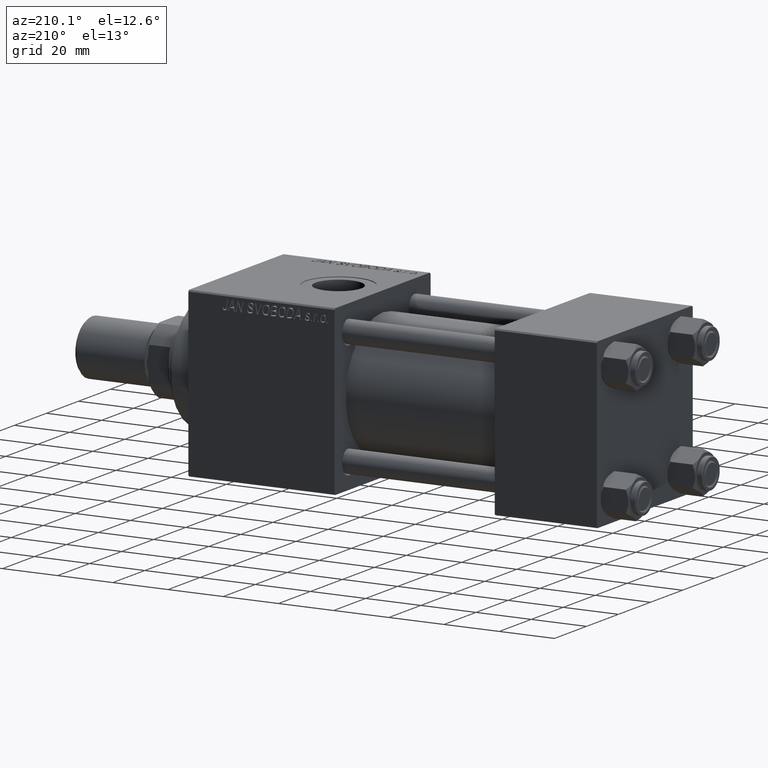
[diagram: clean part render]
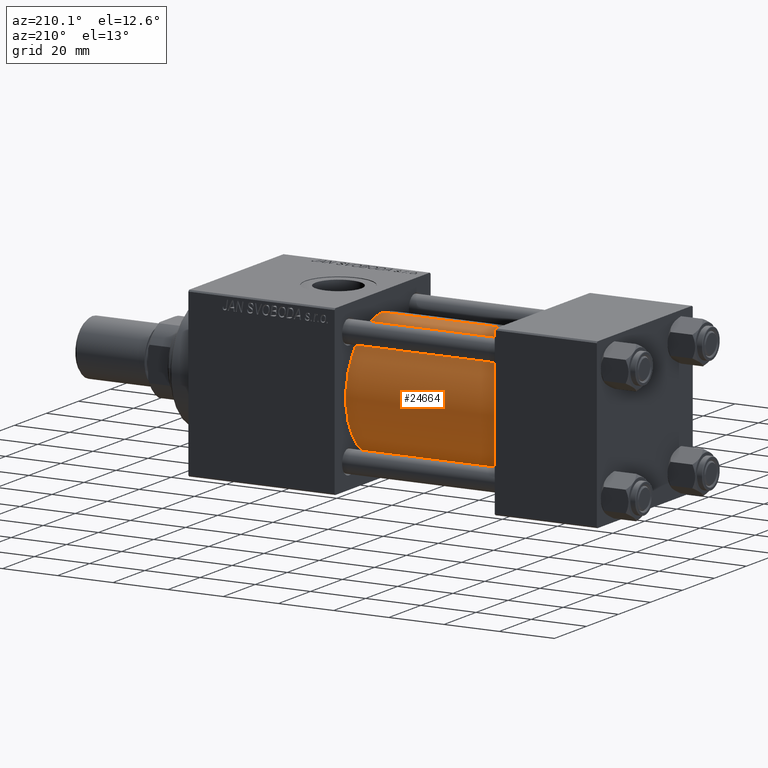
[diagram: same view with one face highlighted and labeled with its STEP entity id]
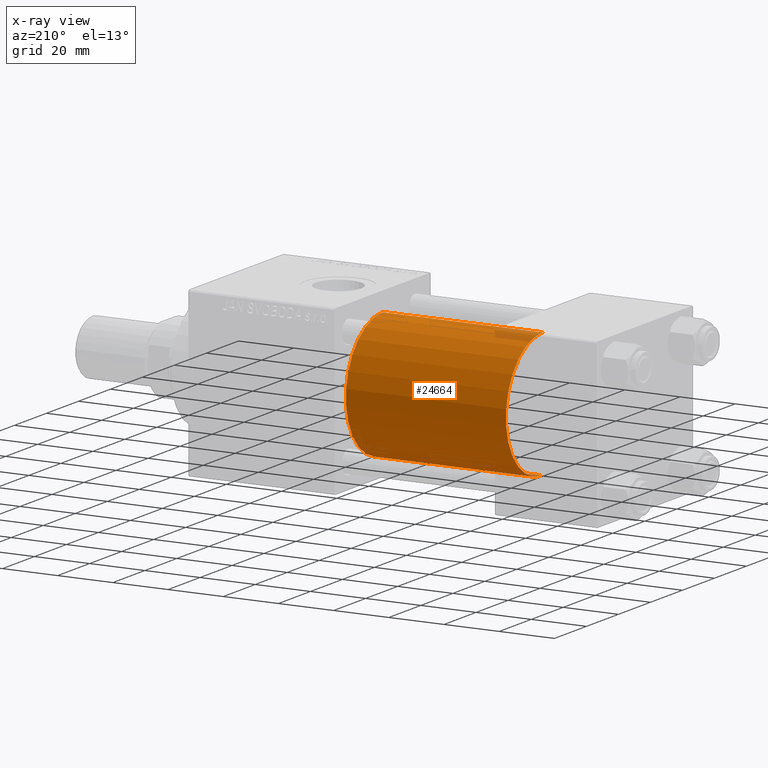
[diagram: x-ray of the same camera — body ghosted, the highlighted face saturated]
A machine part, auxiliary view. The second image highlights one B-rep face of the part: STEP entity #24664.
The next image is the same camera in x-ray: the body ghosted, the highlighted face saturated — about 2% of this face is hidden behind the body in this view.
In plain terms, the highlighted cylindrical surface (partial cylindrical patch) has radius 23 mm, axis along (-1, -0, -0).
Its self-contained STEP definition (entity closure, byte-faithful):
#1177 = VERTEX_POINT ( 'NONE', #35889 ) ;
#2045 = EDGE_LOOP ( 'NONE', ( #47311, #45007, #7859, #28279 ) ) ;
#6444 = CARTESIAN_POINT ( 'NONE',  ( 95.00000000000000000, -2.602085213965210642E-15, 0.000000000000000000 ) ) ;
#7000 = EDGE_CURVE ( 'NONE', #49078, #36035, #26673, .T. ) ;
#7690 = LINE ( 'NONE', #30030, #26485 ) ;
#7859 = ORIENTED_EDGE ( 'NONE', *, *, #40349, .T. ) ;
#10554 = DIRECTION ( 'NONE',  ( -1.000000000000000000, -0.000000000000000000, -0.000000000000000000 ) ) ;
#11041 = CARTESIAN_POINT ( 'NONE',  ( 95.00000000000000000, -2.602085213965210642E-15, 23.00000000000000000 ) ) ;
#11846 = AXIS2_PLACEMENT_3D ( 'NONE', #48550, #36778, #17308 ) ;
#17308 = DIRECTION ( 'NONE',  ( 0.000000000000000000, 0.000000000000000000, 1.000000000000000000 ) ) ;
#21647 = CARTESIAN_POINT ( 'NONE',  ( 37.00000000000000000, 2.146024240737012665E-16, -23.00000000000000000 ) ) ;
#23720 = CARTESIAN_POINT ( 'NONE',  ( 95.00000000000000000, -2.602085213965210642E-15, 0.000000000000000000 ) ) ;
#23960 = CYLINDRICAL_SURFACE ( 'NONE', #31885, 23.00000000000000000 ) ;
#24664 = ADVANCED_FACE ( 'NONE', ( #43188 ), #23960, .T. ) ;
#24828 = EDGE_CURVE ( 'NONE', #1177, #49078, #38429, .T. ) ;
#26485 = VECTOR ( 'NONE', #10554, 1000.000000000000000 ) ;
#26673 = LINE ( 'NONE', #11041, #30483 ) ;
#27561 = DIRECTION ( 'NONE',  ( 0.000000000000000000, 0.000000000000000000, 1.000000000000000000 ) ) ;
#28279 = ORIENTED_EDGE ( 'NONE', *, *, #7000, .F. ) ;
#28620 = AXIS2_PLACEMENT_3D ( 'NONE', #6444, #29523, #33626 ) ;
#29523 = DIRECTION ( 'NONE',  ( 1.000000000000000000, 0.000000000000000000, 0.000000000000000000 ) ) ;
#30030 = CARTESIAN_POINT ( 'NONE',  ( 95.00000000000000000, 2.146024240737012665E-16, -23.00000000000000000 ) ) ;
#30483 = VECTOR ( 'NONE', #37444, 1000.000000000000000 ) ;
#31885 = AXIS2_PLACEMENT_3D ( 'NONE', #23720, #36510, #27561 ) ;
#32131 = CARTESIAN_POINT ( 'NONE',  ( 95.00000000000000000, -2.602085213965210642E-15, 23.00000000000000000 ) ) ;
#32287 = CIRCLE ( 'NONE', #11846, 23.00000000000000000 ) ;
#33587 = EDGE_CURVE ( 'NONE', #1177, #34308, #7690, .T. ) ;
#33626 = DIRECTION ( 'NONE',  ( 0.000000000000000000, 0.000000000000000000, -1.000000000000000000 ) ) ;
#34308 = VERTEX_POINT ( 'NONE', #21647 ) ;
#35889 = CARTESIAN_POINT ( 'NONE',  ( 95.00000000000000000, 2.146024240737012665E-16, -23.00000000000000000 ) ) ;
#36035 = VERTEX_POINT ( 'NONE', #37651 ) ;
#36510 = DIRECTION ( 'NONE',  ( -1.000000000000000000, -0.000000000000000000, -0.000000000000000000 ) ) ;
#36778 = DIRECTION ( 'NONE',  ( 1.000000000000000000, -0.000000000000000000, 0.000000000000000000 ) ) ;
#37444 = DIRECTION ( 'NONE',  ( -1.000000000000000000, -0.000000000000000000, -0.000000000000000000 ) ) ;
#37651 = CARTESIAN_POINT ( 'NONE',  ( 37.00000000000000000, -2.602085213965210642E-15, 23.00000000000000000 ) ) ;
#38429 = CIRCLE ( 'NONE', #28620, 23.00000000000000000 ) ;
#40349 = EDGE_CURVE ( 'NONE', #34308, #36035, #32287, .T. ) ;
#43188 = FACE_OUTER_BOUND ( 'NONE', #2045, .T. ) ;
#45007 = ORIENTED_EDGE ( 'NONE', *, *, #33587, .T. ) ;
#47311 = ORIENTED_EDGE ( 'NONE', *, *, #24828, .F. ) ;
#48550 = CARTESIAN_POINT ( 'NONE',  ( 37.00000000000000000, -2.602085213965210642E-15, 0.000000000000000000 ) ) ;
#49078 = VERTEX_POINT ( 'NONE', #32131 ) ;